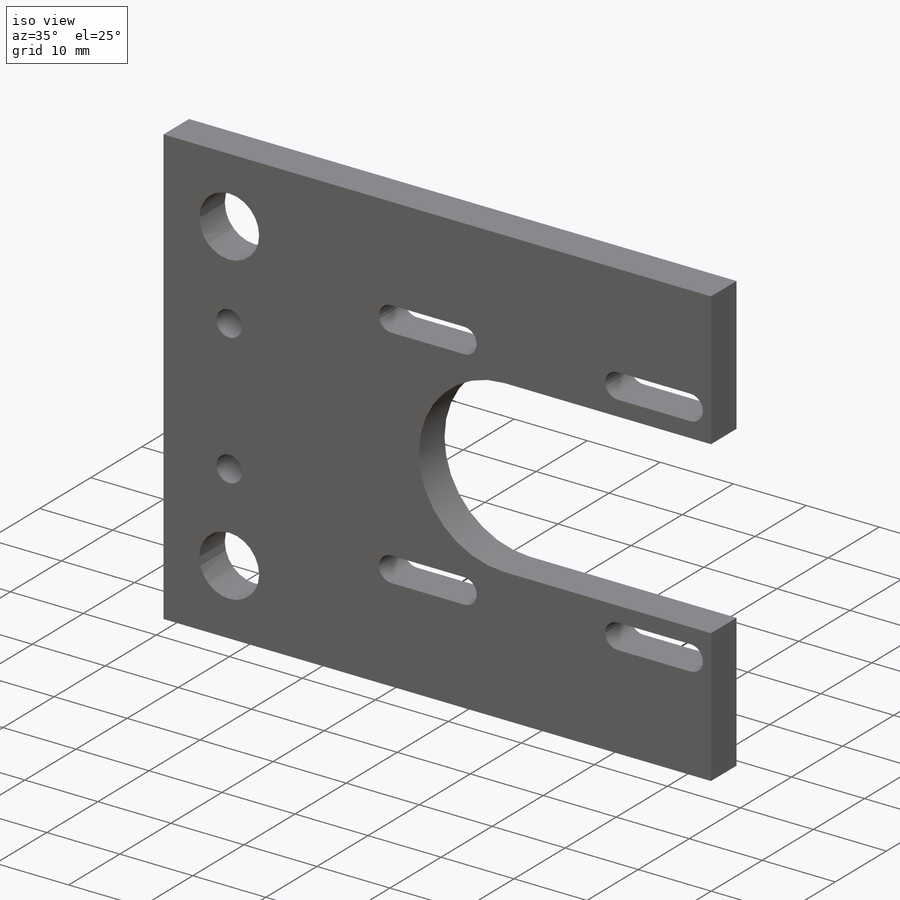
[diagram: iso view]
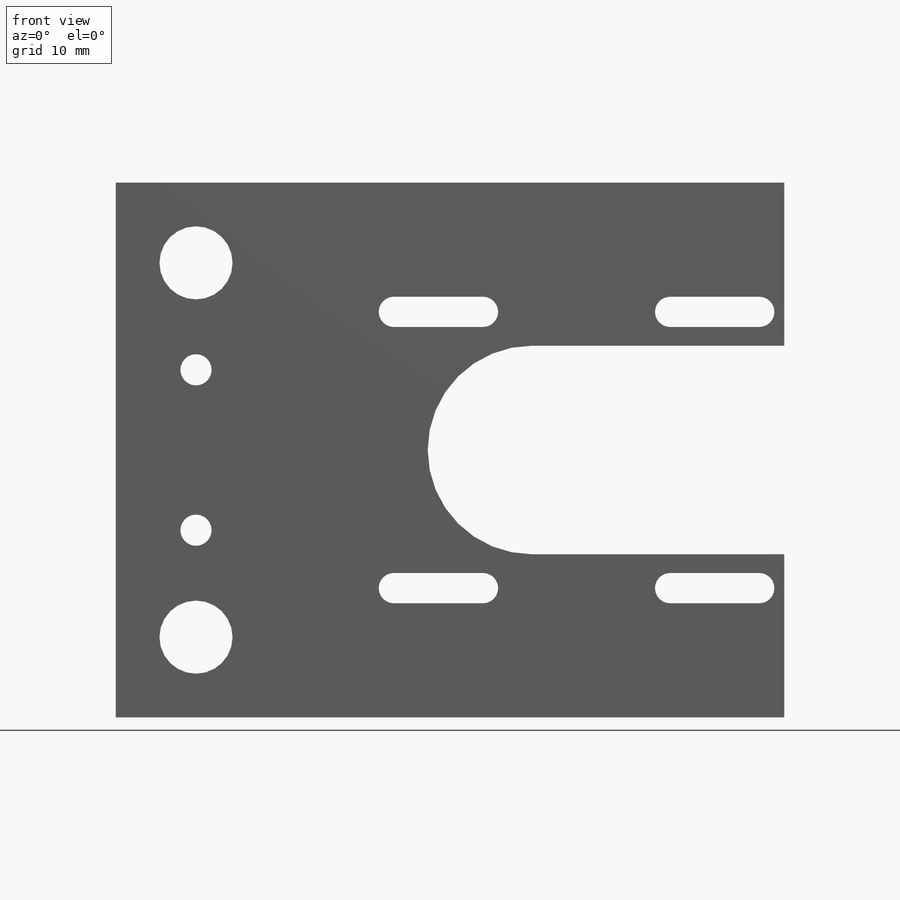
[diagram: front view]
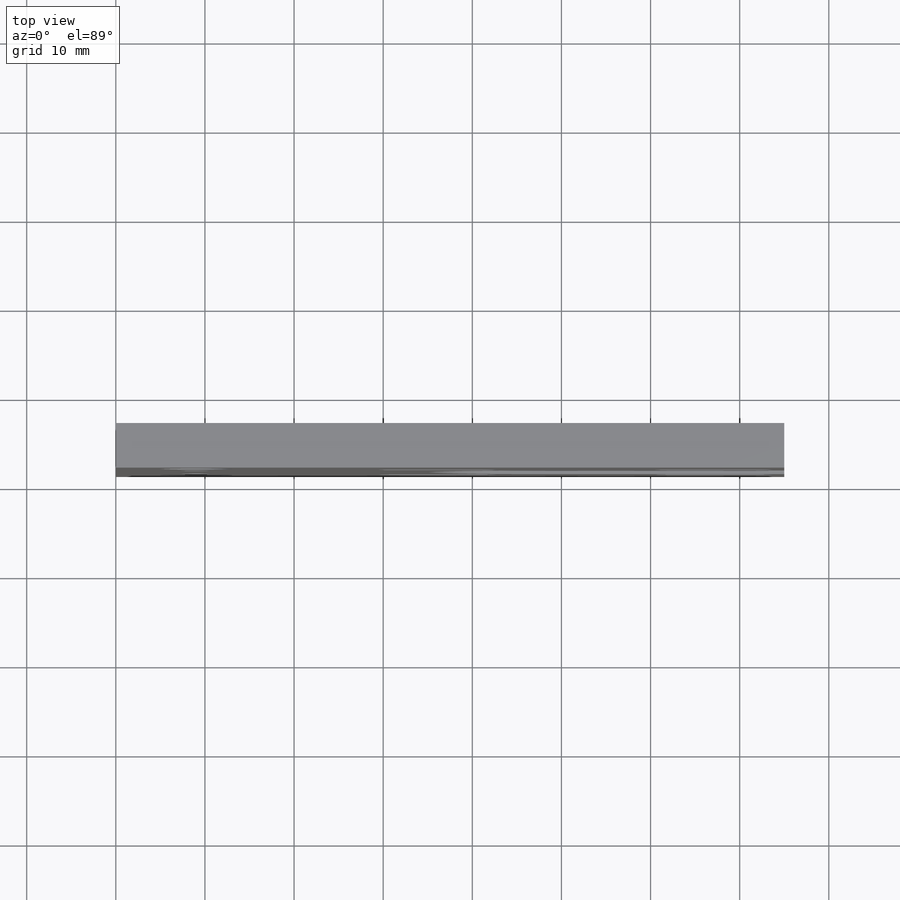
[diagram: top view]
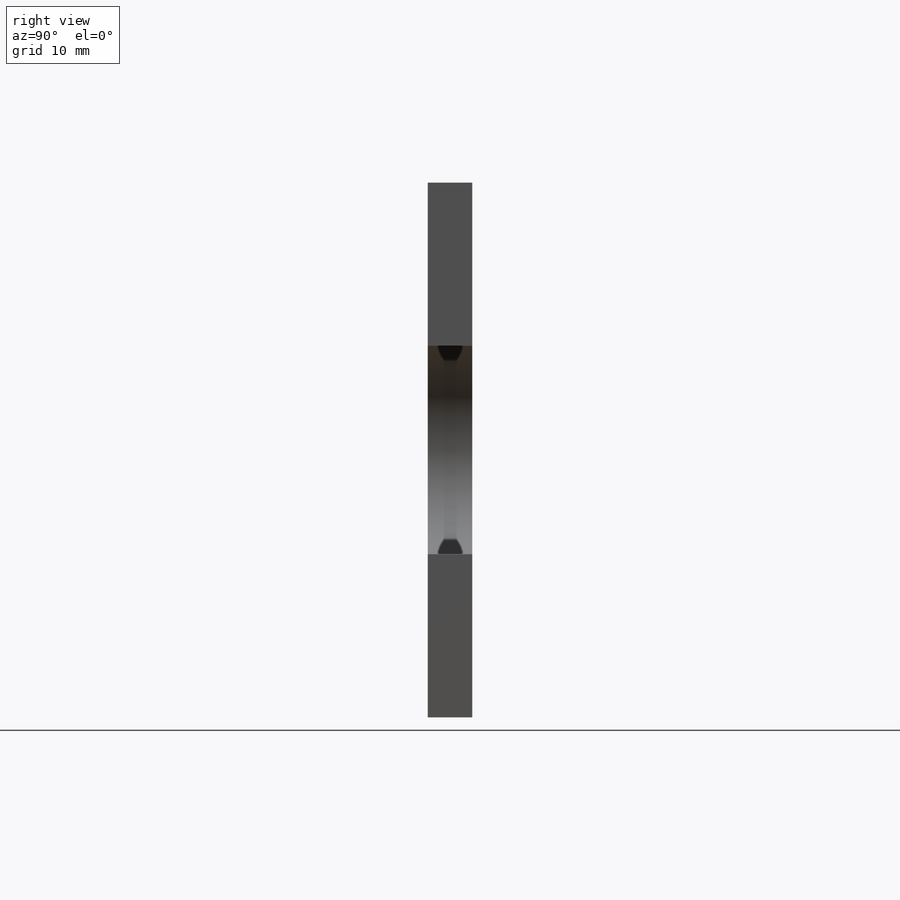
[diagram: right view]
SOLIDWORKS PART (.sldprt)
format: sldprt  version: not decoded by parser v0  size: 316,928 bytes
history: native  units: mm
features: sketch x6, extrude x3, cut_extrude x3, material x1 (+13 scaffold rows collapsed)
feature tree (26):
  scaffold x13  (default folders/planes/origin — collapsed)
  material  "Material <not specified>"
  sketch  "Sketch1"  dims[D1=60.0mm D2=5.0mm]
  extrude  "Boss-Extrude1"  Depth=5mm
  sketch  "Sketch2"  dims[D1=5.0mm]
  extrude  "Boss-Extrude2"  Depth=50mm
  sketch  "Sketch5"  dims[c1.D1=~17.624513mm c1.D2=~17.624513mm c1.D3=12.0mm c2.D1=23.4mm c2.D4=~5.37954mm c3.D1=20.0mm c3.D2=30.0mm c3.D3=21.7mm c3.D4=30.0mm c4.D1=30.0mm]
  cut_extrude  "Cut-Extrude4"  [1 undecoded]
  sketch  "Sketch6"  dims[c1.D1=~1.924617mm c1.D3=3.0mm c1.D4=3.0mm c2.D1=3.0mm c2.D8=3.4mm c2.D9=~1.783286mm c3.D1=5.0mm c3.D2=5.0mm c3.D3=5.0mm c3.D4=5.0mm c3.D5=5.0mm c3.D6=36.0mm c3.D7=36.0mm c4.D1=15.5mm c4.D2=15.5mm c4.D3=15.5mm c4.D4=15.5mm c4.D5=15.5mm c4.D6=15.5mm c4.D7=15.5mm c4.D8=15.5mm c5.D1=~21.92031mm c5.D2=3.8mm c5.D9=3.8mm c6.D1=15.5mm c6.D2=15.5mm c6.D3=15.5mm c6.D4=15.5mm c6.D5=15.5mm c6.D6=15.5mm c6.D7=15.5mm c7.D3=15.5mm c7.D7=10.0mm]
  cut_extrude  "Cut-Extrude5"  [1 undecoded]
  sketch  "Sketch7"
  extrude  "Boss-Extrude3"  Depth=20mm
  sketch  "Sketch8"  dims[c1.D1=8.4mm c1.D2=6.4mm c1.D3=6.4mm c1.D4=8.4mm c1.D5=8.4mm c1.D6=8.4mm c1.D7=6.4mm c1.D8=6.4mm c1.D9=2.1mm c2.D1=9.0mm c2.D2=9.0mm c2.D3=9.0mm c2.D4=9.0mm c2.D5=9.0mm c2.D6=9.0mm c2.D7=21.0mm c2.D8=18.0mm c2.D9=80.0mm]
  cut_extrude  "Cut-Extrude6"  [1 undecoded]
decode coverage: 8 of 12 modeling features carry decoded parameters
note: ~ marks probable driven/reference dimensions
note: 3 parameter values undecoded
summary: no parameter record found for 3 features
note: suppression state not decoded; provenance and decode notes live in map.json
